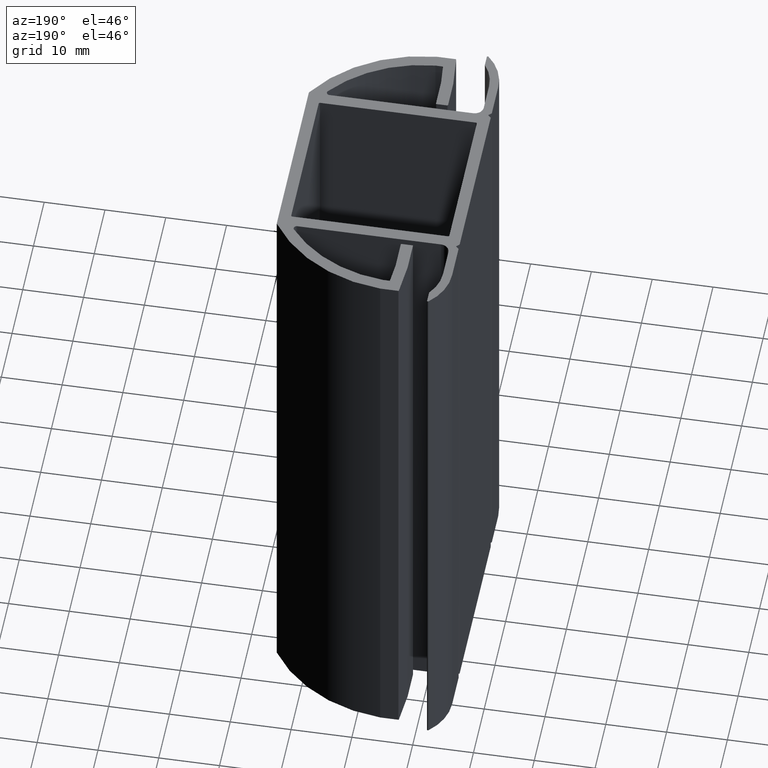
[diagram: clean part render]
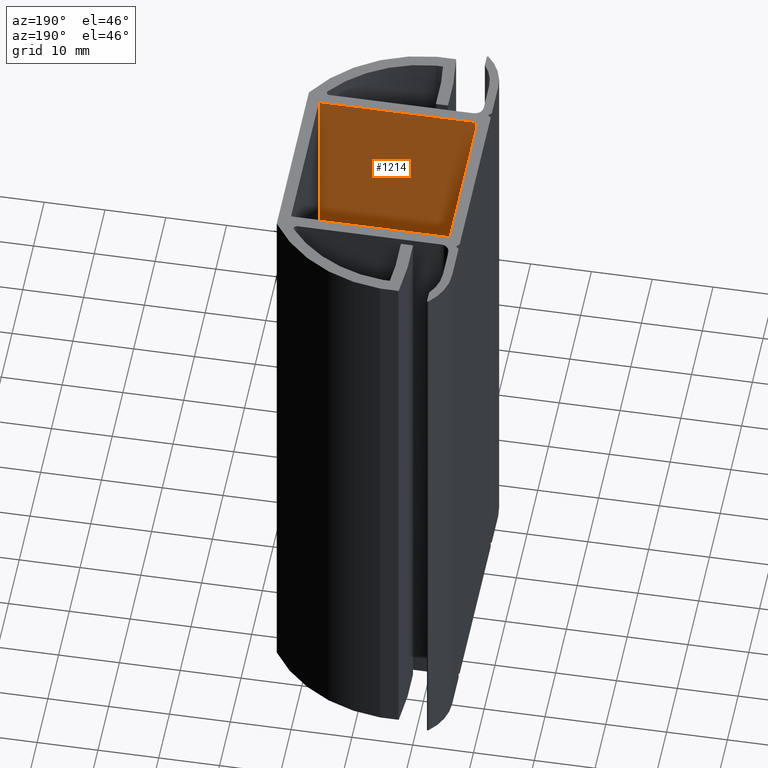
[diagram: same view with one face highlighted and labeled with its STEP entity id]
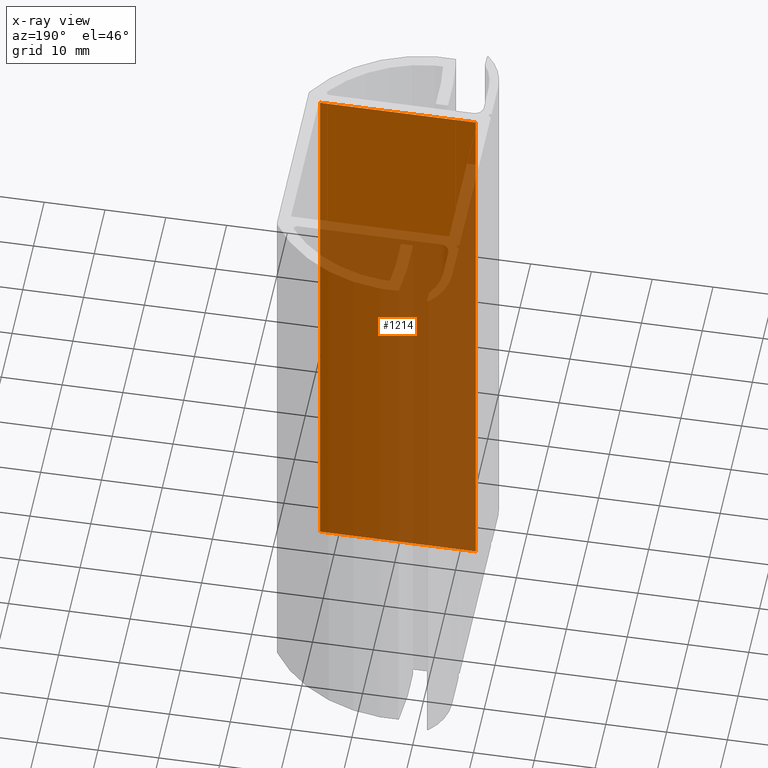
[diagram: x-ray of the same camera — body ghosted, the highlighted face saturated]
A machine part, auxiliary view. The second image highlights one B-rep face of the part: STEP entity #1214.
The next image is the same camera in x-ray: the body ghosted, the highlighted face saturated — about 75% of this face is hidden behind the body in this view.
In plain terms, the highlighted planar face has unit normal (-0, -1, 0).
Its self-contained STEP definition (entity closure, byte-faithful):
#20=PLANE($,#1289);
#60=FACE_OUTER_BOUND($,#122,.T.);
#122=EDGE_LOOP($,(#835,#836,#837,#838));
#237=LINE($,#1770,#367);
#250=LINE($,#1810,#380);
#251=LINE($,#1813,#381);
#252=LINE($,#1814,#382);
#367=VECTOR($,#1398,100.);
#380=VECTOR($,#1437,100.);
#381=VECTOR($,#1442,25.6000000000007);
#382=VECTOR($,#1443,25.6000000000007);
#497=VERTEX_POINT($,#1768);
#498=VERTEX_POINT($,#1769);
#511=VERTEX_POINT($,#1807);
#512=VERTEX_POINT($,#1809);
#621=EDGE_CURVE($,#497,#498,#237,.T.);
#641=EDGE_CURVE($,#511,#512,#250,.T.);
#643=EDGE_CURVE($,#498,#511,#251,.T.);
#644=EDGE_CURVE($,#512,#497,#252,.T.);
#835=ORIENTED_EDGE($,*,*,#641,.F.);
#836=ORIENTED_EDGE($,*,*,#643,.F.);
#837=ORIENTED_EDGE($,*,*,#621,.F.);
#838=ORIENTED_EDGE($,*,*,#644,.F.);
#1214=ADVANCED_FACE($,(#60),#20,.F.);
#1289=AXIS2_PLACEMENT_3D($,#1812,#1440,#1441);
#1398=DIRECTION($,(0.,0.,-1.));
#1437=DIRECTION($,(0.,0.,1.));
#1440=DIRECTION('center_axis',(-3.46944695195352E-016,-1.,0.));
#1441=DIRECTION('ref_axis',(1.,-3.5527136788005E-016,0.));
#1442=DIRECTION($,(1.,-3.46944695195352E-016,0.));
#1443=DIRECTION($,(-1.,3.46944695195352E-016,0.));
#1768=CARTESIAN_POINT('',(-12.8000000000003,-13.,50.));
#1769=CARTESIAN_POINT('',(-12.8000000000003,-13.,-50.));
#1770=CARTESIAN_POINT($,(-12.8000000000003,-13.,0.));
#1807=CARTESIAN_POINT('',(12.8000000000003,-13.,-50.));
#1809=CARTESIAN_POINT('',(12.8000000000003,-13.,50.));
#1810=CARTESIAN_POINT($,(12.8000000000003,-13.,0.));
#1812=CARTESIAN_POINT('Origin',(-12.8000000000003,-13.,0.));
#1813=CARTESIAN_POINT($,(-7.58724625495348,-13.,-50.));
#1814=CARTESIAN_POINT($,(-7.58724625495348,-13.,50.));